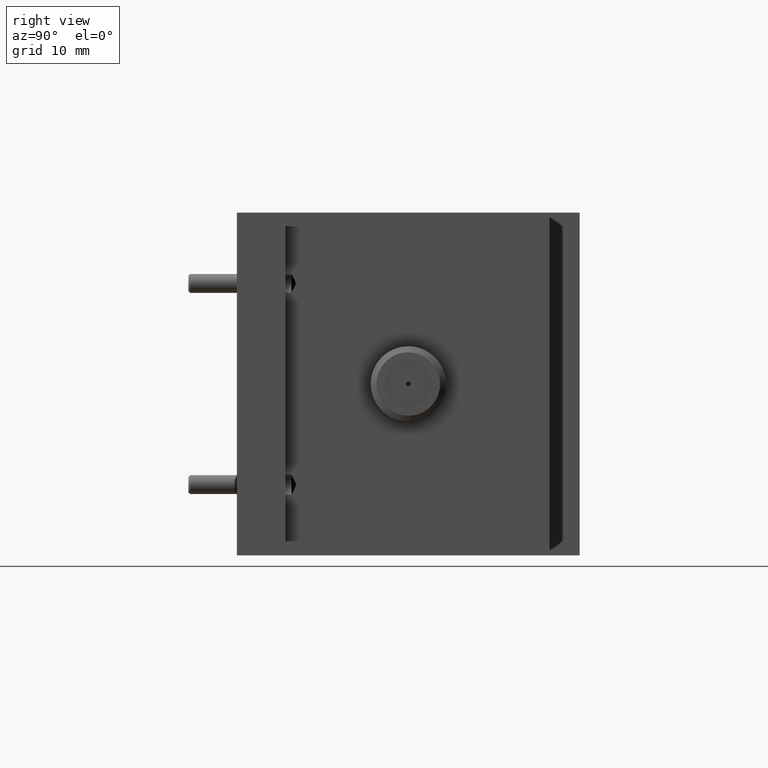
[diagram: clean part render]
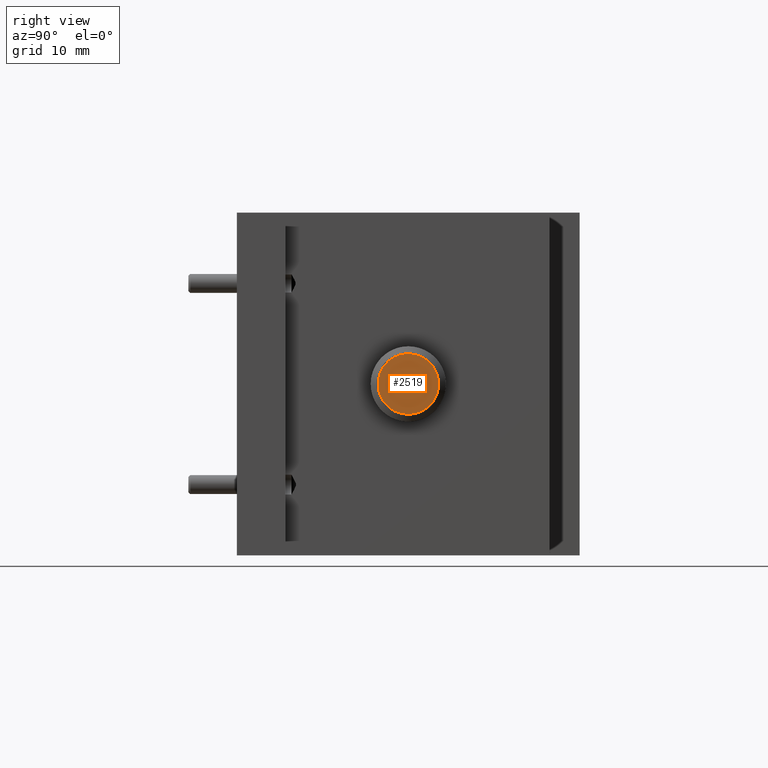
[diagram: same view with one face highlighted and labeled with its STEP entity id]
A machine part, right view. The second image highlights one B-rep face of the part: STEP entity #2519.
In plain terms, the highlighted planar face has unit normal (1, -0, -0).
Its self-contained STEP definition (entity closure, byte-faithful):
#1065 = DIRECTION ( 'NONE',  ( -1.000000000000000000, 2.900066656647877900E-016, 1.204315034474744000E-016 ) ) ;
#1276 = DIRECTION ( 'NONE',  ( 1.000000000000000000, -2.900066656647877900E-016, -1.204315034474744000E-016 ) ) ;
#1432 = VERTEX_POINT ( 'NONE', #11603 ) ;
#1591 = CARTESIAN_POINT ( 'NONE',  ( 1.458999999999999900, -1.764448589550309200E-016, -4.203059470316842300E-017 ) ) ;
#1686 = EDGE_CURVE ( 'NONE', #1432, #15141, #11588, .T. ) ;
#1741 = FACE_OUTER_BOUND ( 'NONE', #8376, .T. ) ;
#1756 = CARTESIAN_POINT ( 'NONE',  ( 1.458999999999999900, -1.764448589550309200E-016, 0.1000000000000000200 ) ) ;
#2519 = ADVANCED_FACE ( 'NONE', ( #1741, #4733 ), #17066, .T. ) ;
#2598 = DIRECTION ( 'NONE',  ( 0.0000000000000000000, 0.0000000000000000000, 1.000000000000000000 ) ) ;
#3009 = CIRCLE ( 'NONE', #8424, 0.007500000000000003200 ) ;
#3048 = CARTESIAN_POINT ( 'NONE',  ( 1.458999999999999900, -1.764448589550309200E-016, -4.203059470316842300E-017 ) ) ;
#3057 = CIRCLE ( 'NONE', #16548, 0.1000000000000000600 ) ;
#3515 = VERTEX_POINT ( 'NONE', #4880 ) ;
#4484 = DIRECTION ( 'NONE',  ( 0.0000000000000000000, 0.0000000000000000000, 1.000000000000000000 ) ) ;
#4733 = FACE_BOUND ( 'NONE', #6370, .T. ) ;
#4880 = CARTESIAN_POINT ( 'NONE',  ( 1.458999999999999900, -1.764448589550309200E-016, 0.007499999999999961600 ) ) ;
#4903 = CARTESIAN_POINT ( 'NONE',  ( 1.458999999999999900, -1.764448589550309200E-016, -4.203059470316842300E-017 ) ) ;
#5211 = CARTESIAN_POINT ( 'NONE',  ( 1.458999999999999900, -1.764448589550309200E-016, -4.203059470316842300E-017 ) ) ;
#5227 = VERTEX_POINT ( 'NONE', #12717 ) ;
#5668 = CIRCLE ( 'NONE', #8727, 0.007500000000000003200 ) ;
#6024 = EDGE_CURVE ( 'NONE', #3515, #5227, #3009, .T. ) ;
#6370 = EDGE_LOOP ( 'NONE', ( #13300, #11402 ) ) ;
#8376 = EDGE_LOOP ( 'NONE', ( #16618, #9065 ) ) ;
#8424 = AXIS2_PLACEMENT_3D ( 'NONE', #3048, #15349, #4484 ) ;
#8727 = AXIS2_PLACEMENT_3D ( 'NONE', #5211, #1065, #13511 ) ;
#8844 = AXIS2_PLACEMENT_3D ( 'NONE', #4903, #17120, #12919 ) ;
#9065 = ORIENTED_EDGE ( 'NONE', *, *, #1686, .T. ) ;
#10567 = EDGE_CURVE ( 'NONE', #5227, #3515, #5668, .T. ) ;
#11209 = EDGE_CURVE ( 'NONE', #15141, #1432, #3057, .T. ) ;
#11402 = ORIENTED_EDGE ( 'NONE', *, *, #10567, .T. ) ;
#11588 = CIRCLE ( 'NONE', #17503, 0.1000000000000000600 ) ;
#11603 = CARTESIAN_POINT ( 'NONE',  ( 1.458999999999999900, -1.997115802417664000E-016, -0.1000000000000000500 ) ) ;
#12158 = CARTESIAN_POINT ( 'NONE',  ( 1.458999999999999900, -1.764448589550309200E-016, -4.203059470316842300E-017 ) ) ;
#12469 = DIRECTION ( 'NONE',  ( 0.0000000000000000000, 0.0000000000000000000, 1.000000000000000000 ) ) ;
#12717 = CARTESIAN_POINT ( 'NONE',  ( 1.458999999999999900, -1.773633440543914200E-016, -0.007500000000000044800 ) ) ;
#12919 = DIRECTION ( 'NONE',  ( 1.204315034474744000E-016, 9.860761315262647600E-032, 1.000000000000000000 ) ) ;
#13300 = ORIENTED_EDGE ( 'NONE', *, *, #6024, .T. ) ;
#13511 = DIRECTION ( 'NONE',  ( 0.0000000000000000000, 0.0000000000000000000, 1.000000000000000000 ) ) ;
#15141 = VERTEX_POINT ( 'NONE', #1756 ) ;
#15349 = DIRECTION ( 'NONE',  ( -1.000000000000000000, 2.900066656647877900E-016, 1.204315034474744000E-016 ) ) ;
#15388 = DIRECTION ( 'NONE',  ( 1.000000000000000000, -2.900066656647877900E-016, -1.204315034474744000E-016 ) ) ;
#16548 = AXIS2_PLACEMENT_3D ( 'NONE', #12158, #1276, #2598 ) ;
#16618 = ORIENTED_EDGE ( 'NONE', *, *, #11209, .T. ) ;
#17066 = PLANE ( 'NONE',  #8844 ) ;
#17120 = DIRECTION ( 'NONE',  ( 1.000000000000000000, -2.900066656647878400E-016, -1.204315034474744000E-016 ) ) ;
#17503 = AXIS2_PLACEMENT_3D ( 'NONE', #1591, #15388, #12469 ) ;